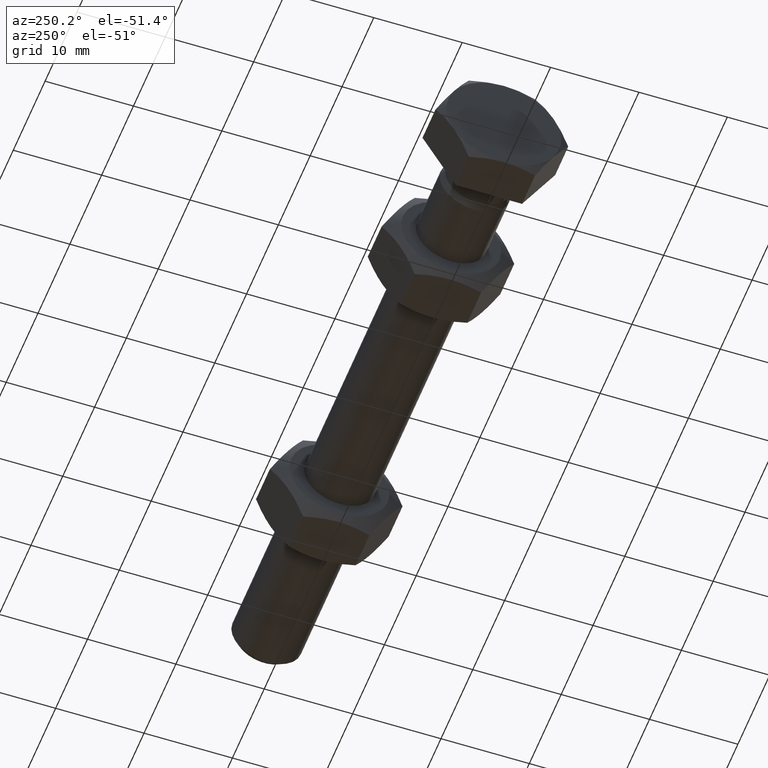
[diagram: clean part render]
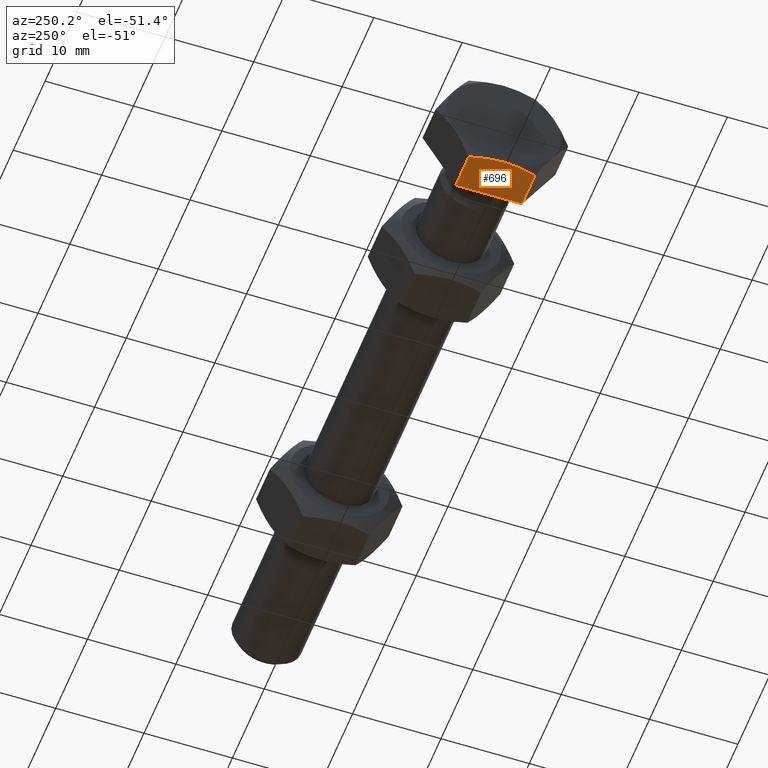
[diagram: same view with one face highlighted and labeled with its STEP entity id]
A machine part, auxiliary view. The second image highlights one B-rep face of the part: STEP entity #696.
In plain terms, the highlighted planar face has unit normal (-0, 0, -1).
Its self-contained STEP definition (entity closure, byte-faithful):
#33=(
BOUNDED_CURVE()
B_SPLINE_CURVE(2,(#1083,#1084,#1085),.UNSPECIFIED.,.F.,.F.)
B_SPLINE_CURVE_WITH_KNOTS((3,3),(0.380711317203905,0.761422634407809),
 .UNSPECIFIED.)
CURVE()
GEOMETRIC_REPRESENTATION_ITEM()
RATIONAL_B_SPLINE_CURVE((1.,1.03795484930204,1.))
REPRESENTATION_ITEM('')
);
#35=(
BOUNDED_CURVE()
B_SPLINE_CURVE(2,(#1092,#1093,#1094),.UNSPECIFIED.,.F.,.F.)
B_SPLINE_CURVE_WITH_KNOTS((3,3),(0.,0.380711317203905),.UNSPECIFIED.)
CURVE()
GEOMETRIC_REPRESENTATION_ITEM()
RATIONAL_B_SPLINE_CURVE((1.,1.03795484930204,1.))
REPRESENTATION_ITEM('')
);
#62=PLANE('',#778);
#101=FACE_OUTER_BOUND('',#148,.T.);
#148=EDGE_LOOP('',(#494,#495,#496,#497,#498));
#194=LINE('',#1101,#233);
#195=LINE('',#1103,#234);
#196=LINE('',#1104,#235);
#233=VECTOR('',#878,10.);
#234=VECTOR('',#879,10.);
#235=VECTOR('',#880,10.);
#311=VERTEX_POINT('',#1081);
#312=VERTEX_POINT('',#1082);
#313=VERTEX_POINT('',#1091);
#314=VERTEX_POINT('',#1100);
#315=VERTEX_POINT('',#1102);
#380=EDGE_CURVE('',#311,#312,#33,.T.);
#383=EDGE_CURVE('',#313,#311,#35,.T.);
#386=EDGE_CURVE('',#314,#312,#194,.T.);
#387=EDGE_CURVE('',#315,#314,#195,.T.);
#388=EDGE_CURVE('',#315,#313,#196,.T.);
#494=ORIENTED_EDGE('',*,*,#383,.T.);
#495=ORIENTED_EDGE('',*,*,#380,.T.);
#496=ORIENTED_EDGE('',*,*,#386,.F.);
#497=ORIENTED_EDGE('',*,*,#387,.F.);
#498=ORIENTED_EDGE('',*,*,#388,.T.);
#696=ADVANCED_FACE('',(#101),#62,.T.);
#778=AXIS2_PLACEMENT_3D('',#1099,#876,#877);
#876=DIRECTION('center_axis',(-6.98827315848798E-32,2.95840413289779E-16,
-1.));
#877=DIRECTION('ref_axis',(-1.,-2.06741361938895E-47,6.98827315848798E-32));
#878=DIRECTION('',(-1.,-2.36217664813863E-16,0.));
#879=DIRECTION('',(-1.25804130546575E-16,1.,2.95840413289779E-16));
#880=DIRECTION('',(-1.,-2.36217664813863E-16,0.));
#1081=CARTESIAN_POINT('',(-5.30010000000001,1.94289029309402E-15,-6.5));
#1082=CARTESIAN_POINT('',(-4.71954341639926,3.75277674973253,-6.5));
#1083=CARTESIAN_POINT('Ctrl Pts',(-5.30010000000001,1.94289029309402E-15,
-6.5));
#1084=CARTESIAN_POINT('Ctrl Pts',(-5.30010000000001,1.74166975080229,-6.5));
#1085=CARTESIAN_POINT('Ctrl Pts',(-4.71954341639926,3.75277674973254,-6.49999999999999));
#1091=CARTESIAN_POINT('',(-4.71954341639926,-3.75277674973258,-6.49999999999997));
#1092=CARTESIAN_POINT('Ctrl Pts',(-4.71954341639926,-3.75277674973253,-6.5));
#1093=CARTESIAN_POINT('Ctrl Pts',(-5.30010000000001,-1.74166975080229,-6.5));
#1094=CARTESIAN_POINT('Ctrl Pts',(-5.30010000000001,1.94289029309402E-15,
-6.5));
#1099=CARTESIAN_POINT('Origin',(-0.600099999999993,-3.75277674973256,-6.5));
#1100=CARTESIAN_POINT('',(-0.600099999999994,3.75277674973256,-6.49999999999999));
#1101=CARTESIAN_POINT('',(-0.600099999999994,3.75277674973256,-6.49999999999999));
#1102=CARTESIAN_POINT('',(-0.600099999999993,-3.75277674973256,-6.5));
#1103=CARTESIAN_POINT('',(-0.600099999999993,-3.75277674973256,-6.5));
#1104=CARTESIAN_POINT('',(-0.600099999999993,-3.75277674973256,-6.5));